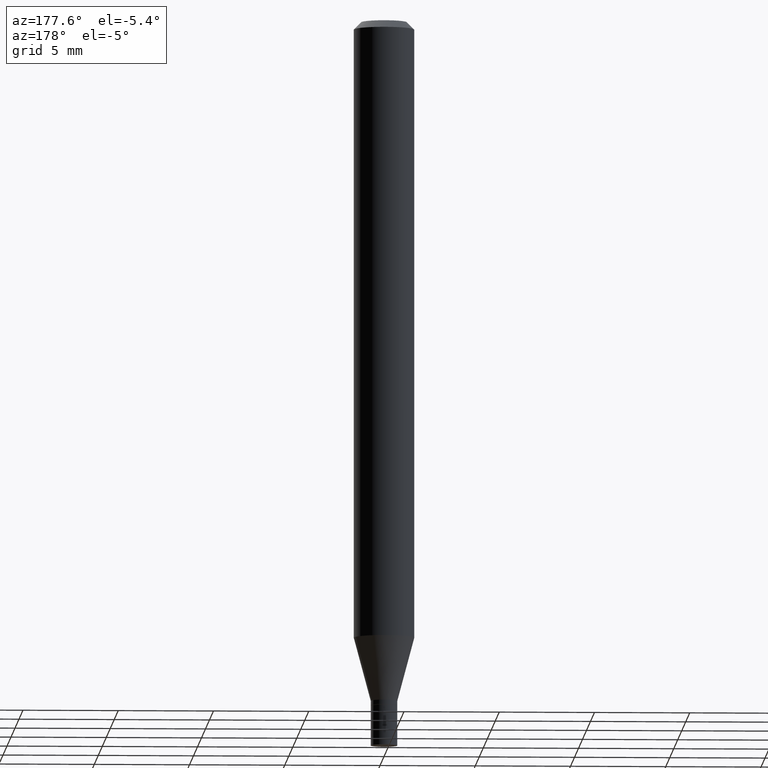
[diagram: clean part render]
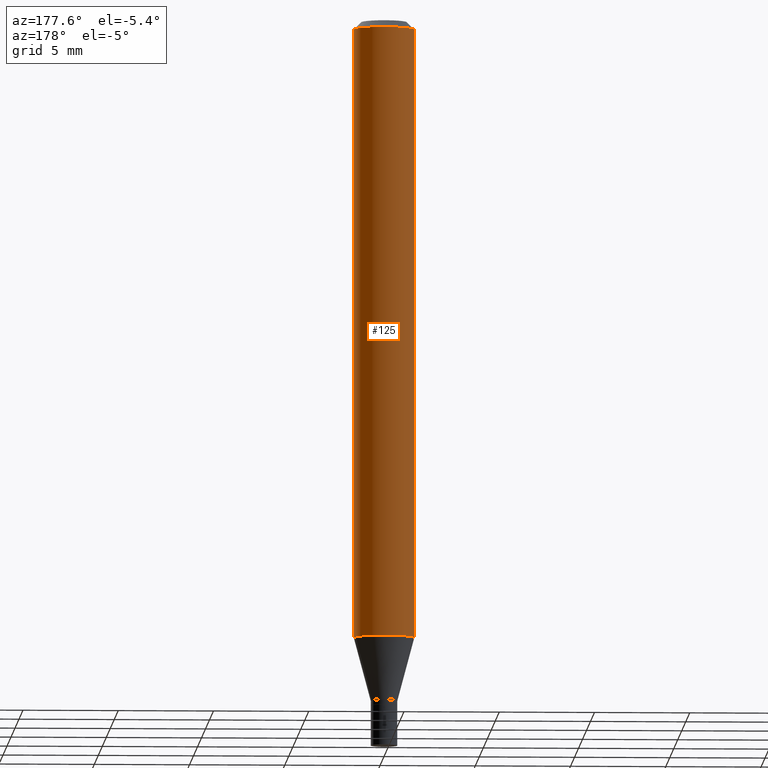
[diagram: same view with one face highlighted and labeled with its STEP entity id]
A machine part, auxiliary view. The second image highlights one B-rep face of the part: STEP entity #125.
In plain terms, the highlighted cylindrical surface (edge-blend (fillet) strip) has radius 1.5875 mm, axis along (-0, 0, 1).
Its self-contained STEP definition (entity closure, byte-faithful):
#1 = CARTESIAN_POINT ( 'NONE',  ( 3.668203209277705088E-31, -5.237222008264718399E-17, -0.01499999999999999944 ) ) ;
#14 = VECTOR ( 'NONE', #29, 39.37007874015748143 ) ;
#29 = DIRECTION ( 'NONE',  ( -2.445468806185136877E-29, 3.491481338843145188E-15, 1.000000000000000000 ) ) ;
#32 = EDGE_CURVE ( 'NONE', #169, #195, #237, .T. ) ;
#37 = EDGE_CURVE ( 'NONE', #169, #135, #464, .T. ) ;
#46 = ORIENTED_EDGE ( 'NONE', *, *, #63, .F. ) ;
#49 = EDGE_LOOP ( 'NONE', ( #255, #361, #46, #227 ) ) ;
#63 = EDGE_CURVE ( 'NONE', #195, #223, #103, .T. ) ;
#67 = CARTESIAN_POINT ( 'NONE',  ( -0.06250000000000000000, -4.012361532643800373E-15, -1.276378221735089191 ) ) ;
#71 = DIRECTION ( 'NONE',  ( 1.000000000000000000, -6.982962677686262766E-15, 0.000000000000000000 ) ) ;
#74 = CARTESIAN_POINT ( 'NONE',  ( -0.06250000000000000000, -1.810322271438192615E-15, -0.01499999999999999944 ) ) ;
#76 = CARTESIAN_POINT ( 'NONE',  ( 0.06250000000000000000, -4.888073874380388472E-16, -0.01499999999999999944 ) ) ;
#103 = CIRCLE ( 'NONE', #406, 0.06250000000000000000 ) ;
#114 = DIRECTION ( 'NONE',  ( 1.000000000000000000, -6.982962677686266711E-15, 4.876176775795935793E-29 ) ) ;
#125 = ADVANCED_FACE ( 'NONE', ( #266 ), #449, .T. ) ;
#135 = VERTEX_POINT ( 'NONE', #67 ) ;
#169 = VERTEX_POINT ( 'NONE', #300 ) ;
#177 = DIRECTION ( 'NONE',  ( -2.445468806185136877E-29, 3.491481338843145188E-15, 1.000000000000000000 ) ) ;
#180 = EDGE_CURVE ( 'NONE', #135, #223, #235, .T. ) ;
#194 = VECTOR ( 'NONE', #177, 39.37007874015748143 ) ;
#195 = VERTEX_POINT ( 'NONE', #76 ) ;
#223 = VERTEX_POINT ( 'NONE', #74 ) ;
#227 = ORIENTED_EDGE ( 'NONE', *, *, #32, .F. ) ;
#235 = LINE ( 'NONE', #285, #194 ) ;
#237 = LINE ( 'NONE', #348, #14 ) ;
#255 = ORIENTED_EDGE ( 'NONE', *, *, #37, .T. ) ;
#257 = DIRECTION ( 'NONE',  ( -2.445468806185136597E-29, 3.491481338843145583E-15, 1.000000000000000000 ) ) ;
#266 = FACE_OUTER_BOUND ( 'NONE', #49, .T. ) ;
#281 = DIRECTION ( 'NONE',  ( -2.445468806185136597E-29, 3.491481338843145583E-15, 1.000000000000000000 ) ) ;
#285 = CARTESIAN_POINT ( 'NONE',  ( -0.06250000000000000000, 4.440892098500626162E-16, -3.074334431409316114E-30 ) ) ;
#300 = CARTESIAN_POINT ( 'NONE',  ( 0.06250000000000000000, -4.892885909849253869E-15, -1.276378221735089191 ) ) ;
#318 = CARTESIAN_POINT ( 'NONE',  ( 3.121343126147216343E-29, -4.456450742493863778E-15, -1.276378221735089191 ) ) ;
#322 = AXIS2_PLACEMENT_3D ( 'NONE', #318, #404, #71 ) ;
#337 = CARTESIAN_POINT ( 'NONE',  ( 0.000000000000000000, 0.000000000000000000, 0.000000000000000000 ) ) ;
#348 = CARTESIAN_POINT ( 'NONE',  ( 0.06250000000000000000, -4.364351673553916694E-16, 3.047610484872459871E-30 ) ) ;
#361 = ORIENTED_EDGE ( 'NONE', *, *, #180, .T. ) ;
#378 = DIRECTION ( 'NONE',  ( 1.000000000000000000, -6.982962677686266711E-15, 0.000000000000000000 ) ) ;
#404 = DIRECTION ( 'NONE',  ( -2.445468806185136597E-29, 3.491481338843145583E-15, 1.000000000000000000 ) ) ;
#406 = AXIS2_PLACEMENT_3D ( 'NONE', #1, #281, #378 ) ;
#418 = AXIS2_PLACEMENT_3D ( 'NONE', #337, #257, #114 ) ;
#449 = CYLINDRICAL_SURFACE ( 'NONE', #418, 0.06250000000000000000 ) ;
#464 = CIRCLE ( 'NONE', #322, 0.06250000000000000000 ) ;